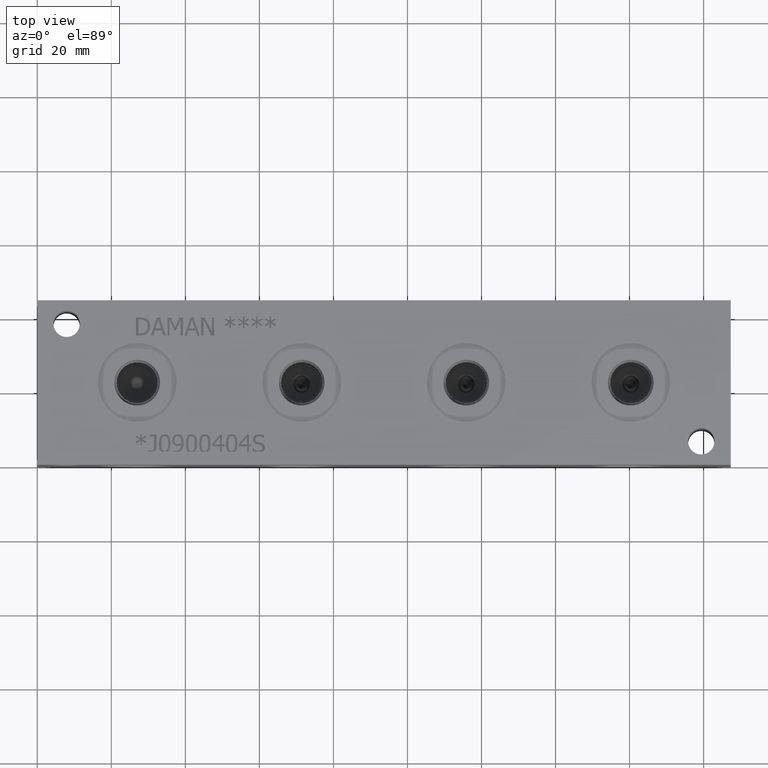
[diagram: clean part render]
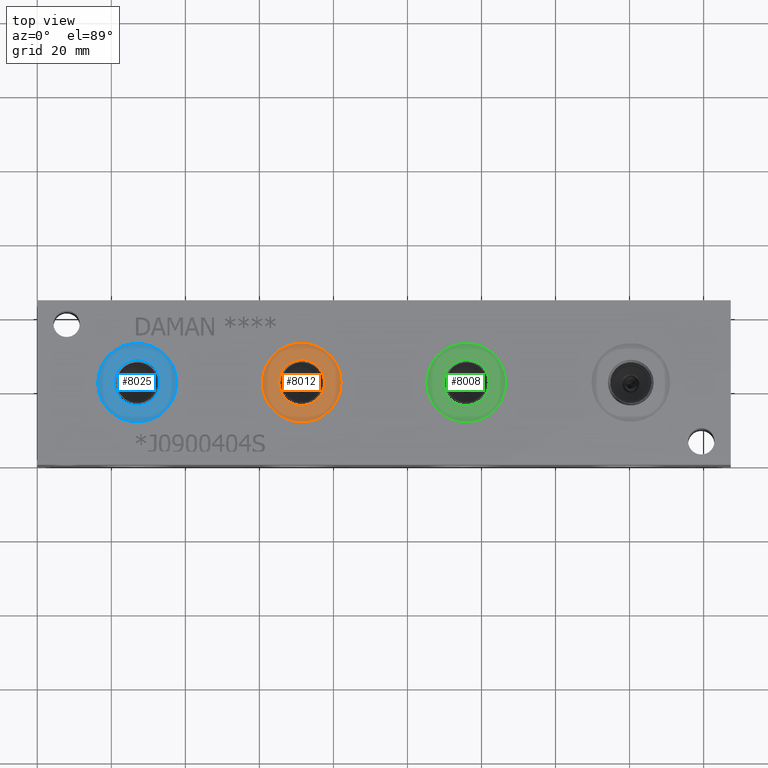
[diagram: same view with three faces highlighted in distinct colors, each labeled with its STEP entity id]
A machine part, top view with three faces highlighted in distinct colors.
Their STEP definitions:

[orange] entity #8012 — the highlighted planar face has unit normal (0, 0, 1).
#254=CIRCLE('',#8492,10.6426);
#255=CIRCLE('',#8493,10.6426);
#256=CIRCLE('',#8494,6.1976);
#327=FACE_BOUND('',#1481,.T.);
#1019=FACE_OUTER_BOUND('',#1480,.T.);
#1480=EDGE_LOOP('',(#6933,#6934));
#1481=EDGE_LOOP('',(#6935));
#3708=VERTEX_POINT('',#13716);
#3709=VERTEX_POINT('',#13717);
#3710=VERTEX_POINT('',#13720);
#4799=EDGE_CURVE('',#3708,#3709,#254,.T.);
#4800=EDGE_CURVE('',#3709,#3708,#255,.T.);
#4801=EDGE_CURVE('',#3710,#3710,#256,.T.);
#6933=ORIENTED_EDGE('',*,*,#4799,.T.);
#6934=ORIENTED_EDGE('',*,*,#4800,.T.);
#6935=ORIENTED_EDGE('',*,*,#4801,.F.);
#7320=PLANE('',#8491);
#8012=ADVANCED_FACE('',(#1019,#327),#7320,.T.);
#8491=AXIS2_PLACEMENT_3D('',#13715,#10138,#10139);
#8492=AXIS2_PLACEMENT_3D('',#13718,#10140,#10141);
#8493=AXIS2_PLACEMENT_3D('',#13719,#10142,#10143);
#8494=AXIS2_PLACEMENT_3D('',#13721,#10144,#10145);
#10138=DIRECTION('center_axis',(0.,0.,1.));
#10139=DIRECTION('ref_axis',(1.,0.,0.));
#10140=DIRECTION('center_axis',(0.,0.,1.));
#10141=DIRECTION('ref_axis',(1.,0.,0.));
#10142=DIRECTION('center_axis',(0.,0.,1.));
#10143=DIRECTION('ref_axis',(1.,0.,0.));
#10144=DIRECTION('center_axis',(0.,0.,1.));
#10145=DIRECTION('ref_axis',(1.,0.,0.));
#13715=CARTESIAN_POINT('Origin',(71.4248,22.225,43.6626));
#13716=CARTESIAN_POINT('',(82.0674,22.225,43.6626));
#13717=CARTESIAN_POINT('',(60.7822,22.225,43.6626));
#13718=CARTESIAN_POINT('Origin',(71.4248,22.225,43.6626));
#13719=CARTESIAN_POINT('Origin',(71.4248,22.225,43.6626));
#13720=CARTESIAN_POINT('',(65.2272,22.225,43.6626));
#13721=CARTESIAN_POINT('Origin',(71.4248,22.225,43.6626));

[blue] entity #8025 — the highlighted planar face has unit normal (0, 0, -1).
#266=CIRCLE('',#8516,10.6426);
#267=CIRCLE('',#8517,10.6426);
#268=CIRCLE('',#8519,6.1976);
#269=CIRCLE('',#8520,6.1976);
#330=FACE_BOUND('',#1497,.T.);
#1032=FACE_OUTER_BOUND('',#1496,.T.);
#1496=EDGE_LOOP('',(#6999,#7000));
#1497=EDGE_LOOP('',(#7001,#7002));
#3721=VERTEX_POINT('',#13762);
#3722=VERTEX_POINT('',#13764);
#3723=VERTEX_POINT('',#13768);
#3724=VERTEX_POINT('',#13769);
#4821=EDGE_CURVE('',#3721,#3722,#266,.T.);
#4822=EDGE_CURVE('',#3722,#3721,#267,.T.);
#4823=EDGE_CURVE('',#3723,#3724,#268,.T.);
#4824=EDGE_CURVE('',#3724,#3723,#269,.T.);
#6999=ORIENTED_EDGE('',*,*,#4822,.F.);
#7000=ORIENTED_EDGE('',*,*,#4821,.F.);
#7001=ORIENTED_EDGE('',*,*,#4823,.T.);
#7002=ORIENTED_EDGE('',*,*,#4824,.T.);
#7323=PLANE('',#8518);
#8025=ADVANCED_FACE('',(#1032,#330),#7323,.F.);
#8516=AXIS2_PLACEMENT_3D('',#13765,#10198,#10199);
#8517=AXIS2_PLACEMENT_3D('',#13766,#10200,#10201);
#8518=AXIS2_PLACEMENT_3D('',#13767,#10202,#10203);
#8519=AXIS2_PLACEMENT_3D('',#13770,#10204,#10205);
#8520=AXIS2_PLACEMENT_3D('',#13771,#10206,#10207);
#10198=DIRECTION('center_axis',(0.,0.,-1.));
#10199=DIRECTION('ref_axis',(1.,0.,0.));
#10200=DIRECTION('center_axis',(0.,0.,-1.));
#10201=DIRECTION('ref_axis',(1.,0.,0.));
#10202=DIRECTION('center_axis',(0.,0.,-1.));
#10203=DIRECTION('ref_axis',(-1.,0.,0.));
#10204=DIRECTION('center_axis',(0.,0.,-1.));
#10205=DIRECTION('ref_axis',(1.,0.,0.));
#10206=DIRECTION('center_axis',(0.,0.,-1.));
#10207=DIRECTION('ref_axis',(1.,0.,0.));
#13762=CARTESIAN_POINT('',(16.3322,22.225,43.6626));
#13764=CARTESIAN_POINT('',(37.6174,22.225,43.6626));
#13765=CARTESIAN_POINT('Origin',(26.9748,22.225,43.6626));
#13766=CARTESIAN_POINT('Origin',(26.9748,22.225,43.6626));
#13767=CARTESIAN_POINT('Origin',(33.1724,22.225,43.6626));
#13768=CARTESIAN_POINT('',(33.1724,22.225,43.6626));
#13769=CARTESIAN_POINT('',(20.7772,22.225,43.6626));
#13770=CARTESIAN_POINT('Origin',(26.9748,22.225,43.6626));
#13771=CARTESIAN_POINT('Origin',(26.9748,22.225,43.6626));

[green] entity #8008 — the highlighted planar face has unit normal (0, 0, 1).
#251=CIRCLE('',#8485,10.6426);
#252=CIRCLE('',#8486,10.6426);
#253=CIRCLE('',#8487,6.1976);
#326=FACE_BOUND('',#1476,.T.);
#1015=FACE_OUTER_BOUND('',#1475,.T.);
#1475=EDGE_LOOP('',(#6912,#6913));
#1476=EDGE_LOOP('',(#6914));
#3705=VERTEX_POINT('',#13703);
#3706=VERTEX_POINT('',#13704);
#3707=VERTEX_POINT('',#13707);
#4793=EDGE_CURVE('',#3705,#3706,#251,.T.);
#4794=EDGE_CURVE('',#3706,#3705,#252,.T.);
#4795=EDGE_CURVE('',#3707,#3707,#253,.T.);
#6912=ORIENTED_EDGE('',*,*,#4793,.T.);
#6913=ORIENTED_EDGE('',*,*,#4794,.T.);
#6914=ORIENTED_EDGE('',*,*,#4795,.F.);
#7319=PLANE('',#8484);
#8008=ADVANCED_FACE('',(#1015,#326),#7319,.T.);
#8484=AXIS2_PLACEMENT_3D('',#13702,#10121,#10122);
#8485=AXIS2_PLACEMENT_3D('',#13705,#10123,#10124);
#8486=AXIS2_PLACEMENT_3D('',#13706,#10125,#10126);
#8487=AXIS2_PLACEMENT_3D('',#13708,#10127,#10128);
#10121=DIRECTION('center_axis',(0.,0.,1.));
#10122=DIRECTION('ref_axis',(1.,0.,0.));
#10123=DIRECTION('center_axis',(0.,0.,1.));
#10124=DIRECTION('ref_axis',(1.,0.,0.));
#10125=DIRECTION('center_axis',(0.,0.,1.));
#10126=DIRECTION('ref_axis',(1.,0.,0.));
#10127=DIRECTION('center_axis',(0.,0.,1.));
#10128=DIRECTION('ref_axis',(1.,0.,0.));
#13702=CARTESIAN_POINT('Origin',(115.8748,22.225,43.6626));
#13703=CARTESIAN_POINT('',(126.5174,22.225,43.6626));
#13704=CARTESIAN_POINT('',(105.2322,22.225,43.6626));
#13705=CARTESIAN_POINT('Origin',(115.8748,22.225,43.6626));
#13706=CARTESIAN_POINT('Origin',(115.8748,22.225,43.6626));
#13707=CARTESIAN_POINT('',(109.6772,22.225,43.6626));
#13708=CARTESIAN_POINT('Origin',(115.8748,22.225,43.6626));